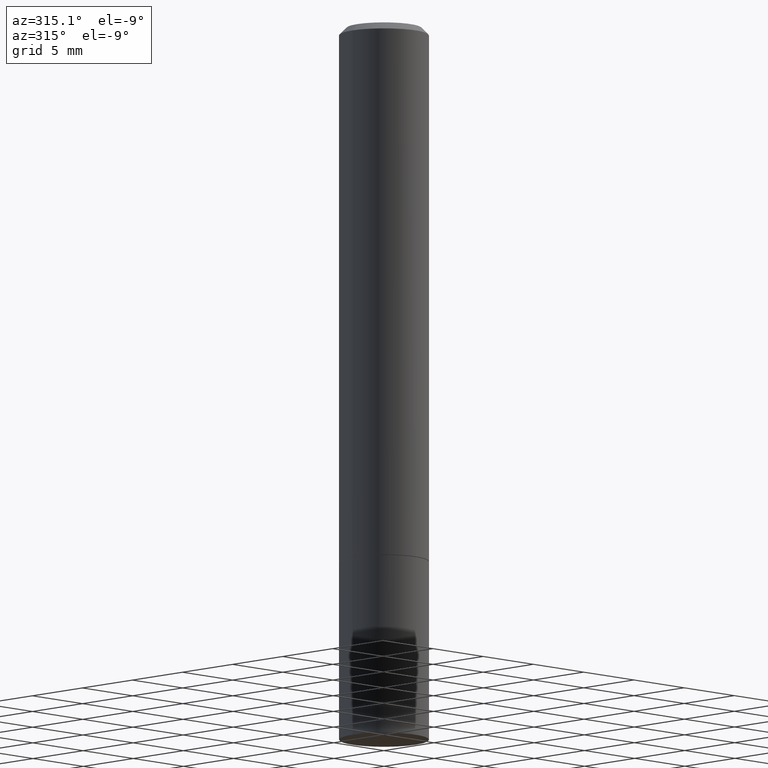
[diagram: clean part render]
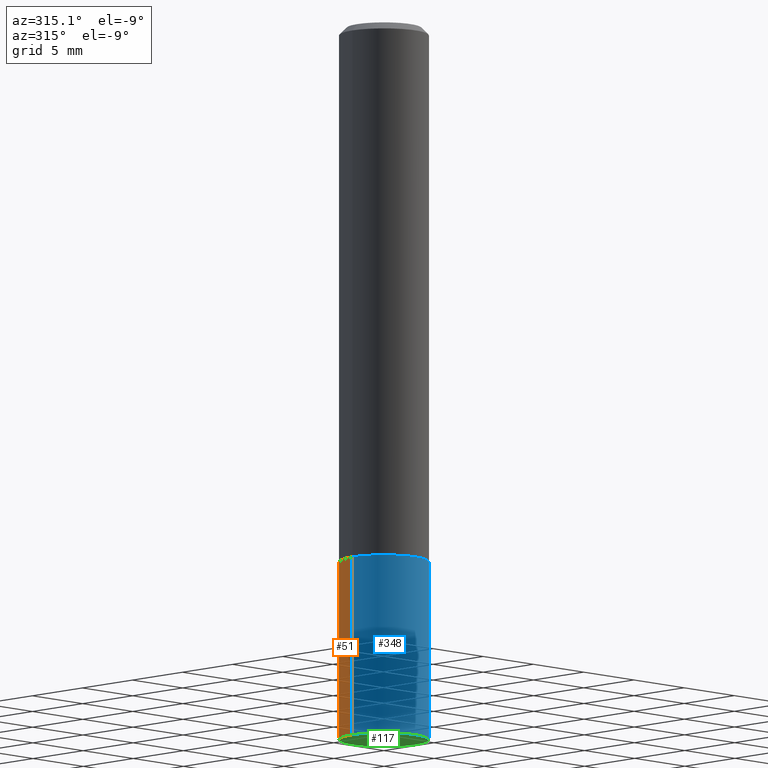
[diagram: same view with three faces highlighted in distinct colors, each labeled with its STEP entity id]
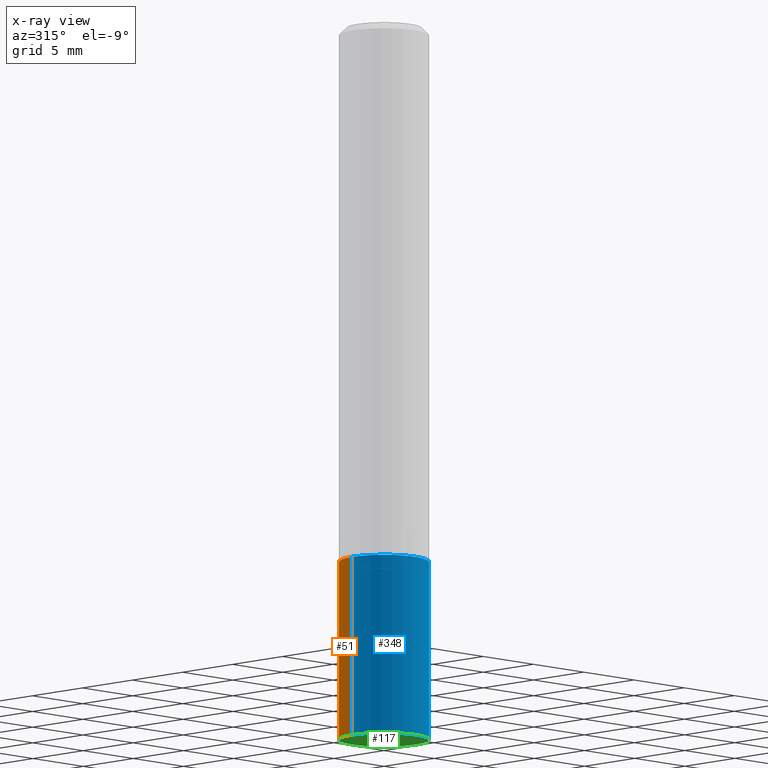
[diagram: x-ray of the same camera — body ghosted, the three highlighted faces saturated]
A machine part, auxiliary view with three faces highlighted in distinct colors.
The next image is the same camera in x-ray (body ghosted, the three faces saturated) — at least one of them is partly hidden behind the body in this view.
Their STEP definitions:

[orange] entity #51 — the highlighted cylindrical surface (partial cylindrical patch) has radius 3.175 mm, axis along (-0, 0, 1).
#2 = VERTEX_POINT ( 'NONE', #97 ) ;
#18 = CARTESIAN_POINT ( 'NONE',  ( 0.000000000000000000, 0.000000000000000000, 0.000000000000000000 ) ) ;
#24 = AXIS2_PLACEMENT_3D ( 'NONE', #258, #112, #206 ) ;
#29 = CARTESIAN_POINT ( 'NONE',  ( -0.1250000000000000000, -5.221913923275378650E-15, -1.499999999999999778 ) ) ;
#37 = ORIENTED_EDGE ( 'NONE', *, *, #190, .T. ) ;
#51 = ADVANCED_FACE ( 'NONE', ( #147 ), #259, .T. ) ;
#54 = CARTESIAN_POINT ( 'NONE',  ( 0.1250000000000000000, -6.110092342975501516E-15, -1.499999999999999778 ) ) ;
#69 = CIRCLE ( 'NONE', #307, 0.1250000000000000000 ) ;
#73 = DIRECTION ( 'NONE',  ( -2.445468806185136877E-29, 3.491481338843145188E-15, 1.000000000000000000 ) ) ;
#78 = EDGE_CURVE ( 'NONE', #327, #198, #242, .T. ) ;
#79 = VECTOR ( 'NONE', #73, 39.37007874015748143 ) ;
#80 = ORIENTED_EDGE ( 'NONE', *, *, #226, .F. ) ;
#84 = ORIENTED_EDGE ( 'NONE', *, *, #78, .F. ) ;
#97 = CARTESIAN_POINT ( 'NONE',  ( -0.1250000000000000000, -5.221913923275378650E-15, -2.000000000000000000 ) ) ;
#108 = CARTESIAN_POINT ( 'NONE',  ( -0.1250000000000000000, 8.881784197001252323E-16, -6.148668862818632227E-30 ) ) ;
#112 = DIRECTION ( 'NONE',  ( -2.445468806185136597E-29, 3.491481338843145583E-15, 1.000000000000000000 ) ) ;
#138 = ORIENTED_EDGE ( 'NONE', *, *, #303, .T. ) ;
#147 = FACE_OUTER_BOUND ( 'NONE', #355, .T. ) ;
#162 = VECTOR ( 'NONE', #227, 39.37007874015748143 ) ;
#182 = LINE ( 'NONE', #108, #162 ) ;
#190 = EDGE_CURVE ( 'NONE', #2, #292, #182, .T. ) ;
#198 = VERTEX_POINT ( 'NONE', #54 ) ;
#204 = DIRECTION ( 'NONE',  ( 1.000000000000000000, -6.982962677686270655E-15, 0.000000000000000000 ) ) ;
#206 = DIRECTION ( 'NONE',  ( 1.000000000000000000, -6.982962677686270655E-15, 0.000000000000000000 ) ) ;
#220 = CIRCLE ( 'NONE', #24, 0.1250000000000000000 ) ;
#226 = EDGE_CURVE ( 'NONE', #198, #292, #69, .T. ) ;
#227 = DIRECTION ( 'NONE',  ( -2.445468806185136877E-29, 3.491481338843145188E-15, 1.000000000000000000 ) ) ;
#240 = DIRECTION ( 'NONE',  ( 1.000000000000000000, -6.982962677686266711E-15, 4.876176775795935793E-29 ) ) ;
#241 = CARTESIAN_POINT ( 'NONE',  ( 0.1250000000000000000, -7.855833012397075293E-15, -2.000000000000000000 ) ) ;
#242 = LINE ( 'NONE', #333, #79 ) ;
#244 = AXIS2_PLACEMENT_3D ( 'NONE', #18, #363, #240 ) ;
#258 = CARTESIAN_POINT ( 'NONE',  ( 4.890937612370273194E-29, -6.982962677686291165E-15, -2.000000000000000000 ) ) ;
#259 = CYLINDRICAL_SURFACE ( 'NONE', #244, 0.1250000000000000000 ) ;
#265 = DIRECTION ( 'NONE',  ( -2.445468806185136597E-29, 3.491481338843145583E-15, 1.000000000000000000 ) ) ;
#284 = CARTESIAN_POINT ( 'NONE',  ( 3.668203209277704335E-29, -5.237222008264717388E-15, -1.499999999999999778 ) ) ;
#292 = VERTEX_POINT ( 'NONE', #29 ) ;
#303 = EDGE_CURVE ( 'NONE', #327, #2, #220, .T. ) ;
#307 = AXIS2_PLACEMENT_3D ( 'NONE', #284, #265, #204 ) ;
#327 = VERTEX_POINT ( 'NONE', #241 ) ;
#333 = CARTESIAN_POINT ( 'NONE',  ( 0.1250000000000000000, -8.728703347107833388E-16, 6.095220969744919741E-30 ) ) ;
#355 = EDGE_LOOP ( 'NONE', ( #138, #37, #80, #84 ) ) ;
#363 = DIRECTION ( 'NONE',  ( -2.445468806185136597E-29, 3.491481338843145583E-15, 1.000000000000000000 ) ) ;

[blue] entity #348 — the highlighted cylindrical surface (partial cylindrical patch) has radius 3.175 mm, axis along (-0, 0, 1).
#2 = VERTEX_POINT ( 'NONE', #97 ) ;
#29 = CARTESIAN_POINT ( 'NONE',  ( -0.1250000000000000000, -5.221913923275378650E-15, -1.499999999999999778 ) ) ;
#43 = ORIENTED_EDGE ( 'NONE', *, *, #190, .F. ) ;
#54 = CARTESIAN_POINT ( 'NONE',  ( 0.1250000000000000000, -6.110092342975501516E-15, -1.499999999999999778 ) ) ;
#65 = AXIS2_PLACEMENT_3D ( 'NONE', #323, #349, #200 ) ;
#73 = DIRECTION ( 'NONE',  ( -2.445468806185136877E-29, 3.491481338843145188E-15, 1.000000000000000000 ) ) ;
#78 = EDGE_CURVE ( 'NONE', #327, #198, #242, .T. ) ;
#79 = VECTOR ( 'NONE', #73, 39.37007874015748143 ) ;
#86 = CARTESIAN_POINT ( 'NONE',  ( 4.890937612370273194E-29, -6.982962677686291165E-15, -2.000000000000000000 ) ) ;
#97 = CARTESIAN_POINT ( 'NONE',  ( -0.1250000000000000000, -5.221913923275378650E-15, -2.000000000000000000 ) ) ;
#99 = DIRECTION ( 'NONE',  ( 1.000000000000000000, -6.982962677686270655E-15, 0.000000000000000000 ) ) ;
#100 = EDGE_CURVE ( 'NONE', #292, #198, #299, .T. ) ;
#108 = CARTESIAN_POINT ( 'NONE',  ( -0.1250000000000000000, 8.881784197001252323E-16, -6.148668862818632227E-30 ) ) ;
#151 = EDGE_CURVE ( 'NONE', #2, #327, #188, .T. ) ;
#153 = ORIENTED_EDGE ( 'NONE', *, *, #151, .T. ) ;
#162 = VECTOR ( 'NONE', #227, 39.37007874015748143 ) ;
#165 = DIRECTION ( 'NONE',  ( 1.000000000000000000, -6.982962677686270655E-15, 0.000000000000000000 ) ) ;
#174 = ORIENTED_EDGE ( 'NONE', *, *, #78, .T. ) ;
#182 = LINE ( 'NONE', #108, #162 ) ;
#188 = CIRCLE ( 'NONE', #331, 0.1250000000000000000 ) ;
#190 = EDGE_CURVE ( 'NONE', #2, #292, #182, .T. ) ;
#192 = FACE_OUTER_BOUND ( 'NONE', #272, .T. ) ;
#198 = VERTEX_POINT ( 'NONE', #54 ) ;
#200 = DIRECTION ( 'NONE',  ( 1.000000000000000000, -6.982962677686266711E-15, 4.876176775795935793E-29 ) ) ;
#227 = DIRECTION ( 'NONE',  ( -2.445468806185136877E-29, 3.491481338843145188E-15, 1.000000000000000000 ) ) ;
#241 = CARTESIAN_POINT ( 'NONE',  ( 0.1250000000000000000, -7.855833012397075293E-15, -2.000000000000000000 ) ) ;
#242 = LINE ( 'NONE', #333, #79 ) ;
#247 = DIRECTION ( 'NONE',  ( -2.445468806185136597E-29, 3.491481338843145583E-15, 1.000000000000000000 ) ) ;
#272 = EDGE_LOOP ( 'NONE', ( #43, #153, #174, #351 ) ) ;
#292 = VERTEX_POINT ( 'NONE', #29 ) ;
#299 = CIRCLE ( 'NONE', #342, 0.1250000000000000000 ) ;
#306 = CARTESIAN_POINT ( 'NONE',  ( 3.668203209277704335E-29, -5.237222008264717388E-15, -1.499999999999999778 ) ) ;
#323 = CARTESIAN_POINT ( 'NONE',  ( 0.000000000000000000, 0.000000000000000000, 0.000000000000000000 ) ) ;
#327 = VERTEX_POINT ( 'NONE', #241 ) ;
#331 = AXIS2_PLACEMENT_3D ( 'NONE', #86, #247, #165 ) ;
#333 = CARTESIAN_POINT ( 'NONE',  ( 0.1250000000000000000, -8.728703347107833388E-16, 6.095220969744919741E-30 ) ) ;
#335 = CYLINDRICAL_SURFACE ( 'NONE', #65, 0.1250000000000000000 ) ;
#342 = AXIS2_PLACEMENT_3D ( 'NONE', #306, #358, #99 ) ;
#348 = ADVANCED_FACE ( 'NONE', ( #192 ), #335, .T. ) ;
#349 = DIRECTION ( 'NONE',  ( -2.445468806185136597E-29, 3.491481338843145583E-15, 1.000000000000000000 ) ) ;
#351 = ORIENTED_EDGE ( 'NONE', *, *, #100, .F. ) ;
#358 = DIRECTION ( 'NONE',  ( -2.445468806185136597E-29, 3.491481338843145583E-15, 1.000000000000000000 ) ) ;

[green] entity #117 — the highlighted planar face has unit normal (0, -0, -1).
#2 = VERTEX_POINT ( 'NONE', #97 ) ;
#13 = DIRECTION ( 'NONE',  ( 2.438088387897960049E-29, -3.491481338843145188E-15, -1.000000000000000000 ) ) ;
#24 = AXIS2_PLACEMENT_3D ( 'NONE', #258, #112, #206 ) ;
#33 = EDGE_LOOP ( 'NONE', ( #148, #312 ) ) ;
#86 = CARTESIAN_POINT ( 'NONE',  ( 4.890937612370273194E-29, -6.982962677686291165E-15, -2.000000000000000000 ) ) ;
#94 = DIRECTION ( 'NONE',  ( -1.000000000000000000, 6.982962677686265922E-15, -4.876176775795935793E-29 ) ) ;
#97 = CARTESIAN_POINT ( 'NONE',  ( -0.1250000000000000000, -5.221913923275378650E-15, -2.000000000000000000 ) ) ;
#112 = DIRECTION ( 'NONE',  ( -2.445468806185136597E-29, 3.491481338843145583E-15, 1.000000000000000000 ) ) ;
#113 = AXIS2_PLACEMENT_3D ( 'NONE', #296, #13, #94 ) ;
#117 = ADVANCED_FACE ( 'NONE', ( #157 ), #359, .T. ) ;
#148 = ORIENTED_EDGE ( 'NONE', *, *, #303, .F. ) ;
#151 = EDGE_CURVE ( 'NONE', #2, #327, #188, .T. ) ;
#157 = FACE_OUTER_BOUND ( 'NONE', #33, .T. ) ;
#165 = DIRECTION ( 'NONE',  ( 1.000000000000000000, -6.982962677686270655E-15, 0.000000000000000000 ) ) ;
#188 = CIRCLE ( 'NONE', #331, 0.1250000000000000000 ) ;
#206 = DIRECTION ( 'NONE',  ( 1.000000000000000000, -6.982962677686270655E-15, 0.000000000000000000 ) ) ;
#220 = CIRCLE ( 'NONE', #24, 0.1250000000000000000 ) ;
#241 = CARTESIAN_POINT ( 'NONE',  ( 0.1250000000000000000, -7.855833012397075293E-15, -2.000000000000000000 ) ) ;
#247 = DIRECTION ( 'NONE',  ( -2.445468806185136597E-29, 3.491481338843145583E-15, 1.000000000000000000 ) ) ;
#258 = CARTESIAN_POINT ( 'NONE',  ( 4.890937612370273194E-29, -6.982962677686291165E-15, -2.000000000000000000 ) ) ;
#296 = CARTESIAN_POINT ( 'NONE',  ( 8.728703347108321496E-16, 0.1249999999999930195, -2.000000000000000444 ) ) ;
#303 = EDGE_CURVE ( 'NONE', #327, #2, #220, .T. ) ;
#312 = ORIENTED_EDGE ( 'NONE', *, *, #151, .F. ) ;
#327 = VERTEX_POINT ( 'NONE', #241 ) ;
#331 = AXIS2_PLACEMENT_3D ( 'NONE', #86, #247, #165 ) ;
#359 = PLANE ( 'NONE',  #113 ) ;